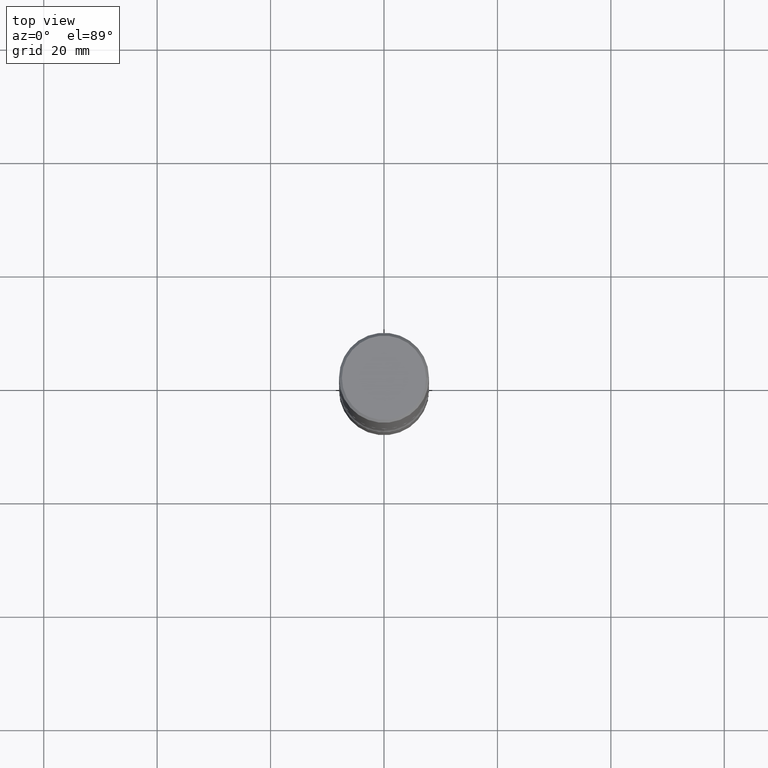
[diagram: clean part render]
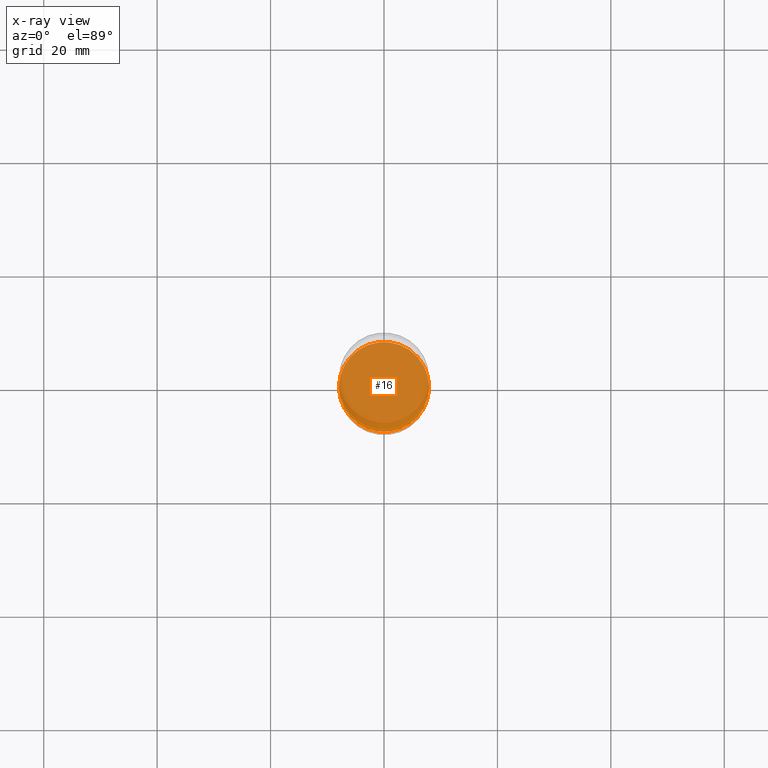
[diagram: x-ray — body ghosted, one internal face saturated and labeled with its STEP entity id]
A machine part, top view, then the same camera in x-ray: the body is ghosted and one INTERNAL B-rep face — a face not visible from any outside direction — is saturated and labeled: STEP entity #16.
In plain terms, the highlighted planar face has unit normal (0, -0, -1).
Its self-contained STEP definition (entity closure, byte-faithful):
#1 = PLANE ( 'NONE',  #331 ) ;
#16 = ADVANCED_FACE ( 'NONE', ( #162 ), #1, .F. ) ;
#34 = DIRECTION ( 'NONE',  ( 1.000000000000000000, -6.982962677686269077E-15, 0.000000000000000000 ) ) ;
#41 = AXIS2_PLACEMENT_3D ( 'NONE', #455, #244, #34 ) ;
#67 = CARTESIAN_POINT ( 'NONE',  ( -0.3125000000000002776, -1.298495518141158727E-14, -3.750000000000000888 ) ) ;
#75 = AXIS2_PLACEMENT_3D ( 'NONE', #144, #445, #369 ) ;
#86 = CIRCLE ( 'NONE', #41, 0.3125000000000002776 ) ;
#105 = ORIENTED_EDGE ( 'NONE', *, *, #539, .T. ) ;
#144 = CARTESIAN_POINT ( 'NONE',  ( 9.170508023194263359E-29, -1.309305502066179899E-14, -3.750000000000000888 ) ) ;
#162 = FACE_OUTER_BOUND ( 'NONE', #466, .T. ) ;
#169 = CARTESIAN_POINT ( 'NONE',  ( 0.3125000000000002776, -1.527523085743876049E-14, -3.750000000000000888 ) ) ;
#171 = CARTESIAN_POINT ( 'NONE',  ( 9.170508023194263359E-29, -1.309305502066179899E-14, -3.750000000000000888 ) ) ;
#208 = DIRECTION ( 'NONE',  ( 2.438088387897960049E-29, -3.491481338843145188E-15, -1.000000000000000000 ) ) ;
#244 = DIRECTION ( 'NONE',  ( -2.445468806185136597E-29, 3.491481338843145583E-15, 1.000000000000000000 ) ) ;
#275 = EDGE_CURVE ( 'NONE', #296, #423, #396, .T. ) ;
#296 = VERTEX_POINT ( 'NONE', #67 ) ;
#331 = AXIS2_PLACEMENT_3D ( 'NONE', #171, #208, #420 ) ;
#369 = DIRECTION ( 'NONE',  ( 1.000000000000000000, -6.982962677686269077E-15, 0.000000000000000000 ) ) ;
#396 = CIRCLE ( 'NONE', #75, 0.3125000000000002776 ) ;
#420 = DIRECTION ( 'NONE',  ( -1.000000000000000000, 6.982962677686265922E-15, -4.876176775795935793E-29 ) ) ;
#423 = VERTEX_POINT ( 'NONE', #169 ) ;
#445 = DIRECTION ( 'NONE',  ( -2.445468806185136597E-29, 3.491481338843145583E-15, 1.000000000000000000 ) ) ;
#455 = CARTESIAN_POINT ( 'NONE',  ( 9.170508023194263359E-29, -1.309305502066179899E-14, -3.750000000000000888 ) ) ;
#457 = ORIENTED_EDGE ( 'NONE', *, *, #275, .T. ) ;
#466 = EDGE_LOOP ( 'NONE', ( #105, #457 ) ) ;
#539 = EDGE_CURVE ( 'NONE', #423, #296, #86, .T. ) ;